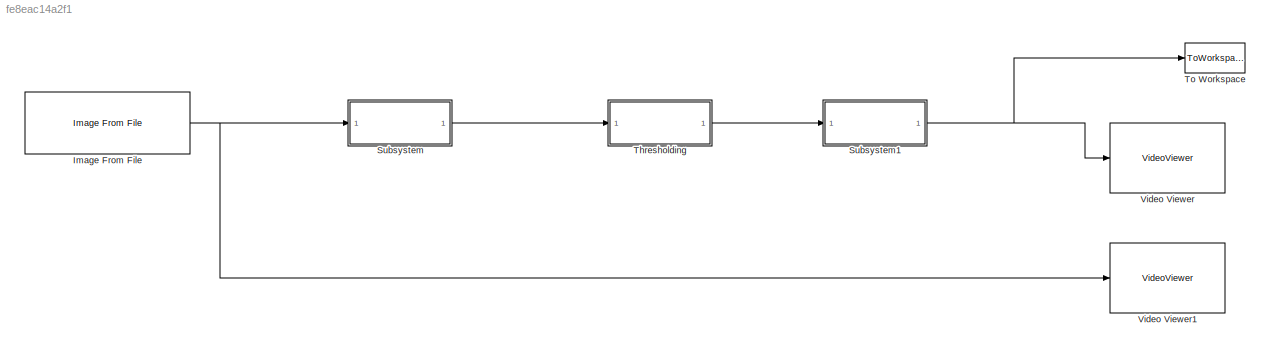
MODEL slx_fe8eac14a2f1
KIND model
CONFIG AbsTol = auto
CONFIG EnableMultiTasking = off
CONFIG FixedStep = auto
CONFIG MaxStep = auto
CONFIG MinStep = auto
CONFIG RelTol = 1e-3
CONFIG SampleTimeConstraint = Unconstrained
CONFIG Solver = VariableStepAuto
CONFIG SolverName = VariableStepAuto
CONFIG StartTime = 0.0
CONFIG StopTime = 10.0
BLOCK [Reference] Image From File  REF=visionsources/Image From File
  Ports = [0, 1]
  SourceBlock = visionsources/Image From File
  SourceProductBaseCode = VP
  SourceProductName = Computer Vision System Toolbox
  SourceType = Image From File
  Tag = vipblks_nd
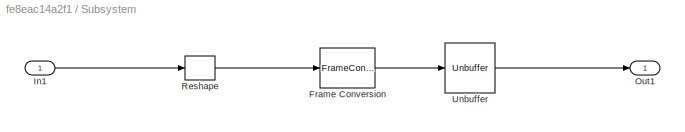
BLOCK [SubSystem] Subsystem
  Ports = [1, 1]
  RequestExecContextInheritance = off
BLOCK [FrameConversion] Subsystem/Frame Conversion
  Ports = [1, 1]
BLOCK [Inport] Subsystem/In1
  IconDisplay = Port number
BLOCK [Outport] Subsystem/Out1
  IconDisplay = Port number
BLOCK [Reshape] Subsystem/Reshape
  Ports = [1, 1]
BLOCK [Unbuffer] Subsystem/Unbuffer
  Ports = [1, 1]
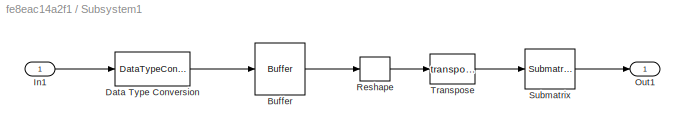
BLOCK [SubSystem] Subsystem1
  Ports = [1, 1]
  RequestExecContextInheritance = off
BLOCK [Buffer] Subsystem1/Buffer
  N = 65536
  OutputFrames = off
BLOCK [DataTypeConversion] Subsystem1/Data Type Conversion
  RndMeth = Floor
  SaturateOnIntegerOverflow = off
BLOCK [Inport] Subsystem1/In1
  IconDisplay = Port number
BLOCK [Outport] Subsystem1/Out1
  IconDisplay = Port number
BLOCK [Reshape] Subsystem1/Reshape
  OutputDimensionality = Customize
  OutputDimensions = [256,256]
  Ports = [1, 1]
BLOCK [Reference] Subsystem1/Submatrix  REF=dspmtrx3/Submatrix
  Ports = [1, 1]
  SourceBlock = dspmtrx3/Submatrix
  SourceProductBaseCode = DS
  SourceProductName = DSP System Toolbox
  SourceType = Submatrix
BLOCK [Math] Subsystem1/Transpose
  Operator = transpose
  Ports = [1, 1]
  RndMeth = Zero
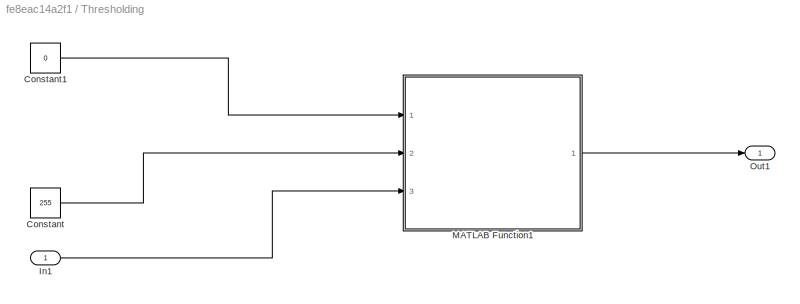
BLOCK [SubSystem] Thresholding
  Ports = [1, 1]
  RequestExecContextInheritance = off
  TreatAsAtomicUnit = on
BLOCK [Constant] Thresholding/Constant
  OutDataTypeStr = uint32
  SampleTime = -1
  Value = 255
BLOCK [Constant] Thresholding/Constant1
  OutDataTypeStr = uint32
  SampleTime = -1
  Value = 0
BLOCK [Inport] Thresholding/In1
  IconDisplay = Port number
  OutDataTypeStr = uint8
  PortDimensions = 1
  SampleTime = 1.52587890625e-06
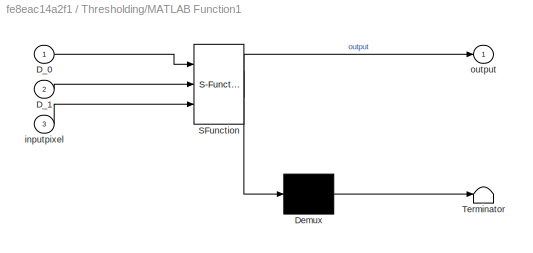
BLOCK [SubSystem] Thresholding/MATLAB Function1
  ErrorFcn = Stateflow.Translate.translate
  PermitHierarchicalResolution = ExplicitOnly
  Ports = [3, 1]
  RequestExecContextInheritance = off
  SFBlockType = MATLAB Function
  TreatAsAtomicUnit = on
BLOCK [Demux] Thresholding/MATLAB Function1/ Demux 
  Outputs = 1
  Ports = [1, 1]
BLOCK [S-Function] Thresholding/MATLAB Function1/ SFunction 
  EnableBusSupport = on
  FunctionName = sf_sfun
  PortCounts = [3 2]
  Ports = [3, 2]
  SFcnIsStateOwnerBlock = off
  SFunctionDeploymentMode = off
  Tag = Stateflow S-Function gm_Image_threshold_final 2
BLOCK [Terminator] Thresholding/MATLAB Function1/ Terminator 
BLOCK [Inport] Thresholding/MATLAB Function1/D_0
  IconDisplay = Port number
BLOCK [Inport] Thresholding/MATLAB Function1/D_1
  IconDisplay = Port number
  Port = 2
BLOCK [Inport] Thresholding/MATLAB Function1/inputpixel
  IconDisplay = Port number
  Port = 3
BLOCK [Outport] Thresholding/MATLAB Function1/output
  IconDisplay = Port number
BLOCK [Outport] Thresholding/Out1
  IconDisplay = Port number
BLOCK [ToWorkspace] To Workspace
  FixptAsFi = on
  MaxDataPoints = inf
  Ports = [1]
  SampleTime = -1
  Save2DSignal = 2-D array (concatenate along first dimension)
  VariableName = simout
BLOCK [VideoViewer] Video Viewer
  FigPos = [1249 575 418 304]
  Ports = [1]
  ScopeSpecificationString = vipscopes.VideoViewerScopeCfg('CurrentConfiguration', extmgr.ConfigurationSet(extmgr.Configuration('Core','General UI',true),extmgr.Configuration('Core','Source UI',true),extmgr.Configuration('Sources','WiredSimulink',true),extmgr.Configuration('Visuals','Video',true),extmgr.Configuration('Tools','Image Navigation Tools',true),extmgr.Configuration('Tools','Image Tool',true),extmgr.Configuration('T...<+76ch>
BLOCK [VideoViewer] Video Viewer1
  FigPos = [487 497 457 372]
  Ports = [1]
  ScopeSpecificationString = vipscopes.VideoViewerScopeCfg('CurrentConfiguration', extmgr.ConfigurationSet(extmgr.Configuration('Core','General UI',true),extmgr.Configuration('Core','Source UI',true),extmgr.Configuration('Sources','WiredSimulink',true),extmgr.Configuration('Visuals','Video',true),extmgr.Configuration('Tools','Image Navigation Tools',true),extmgr.Configuration('Tools','Image Tool',true),extmgr.Configuration('T...<+75ch>
NET Image From File:1 -> Subsystem:1, Video Viewer1:1
LINE Subsystem/Frame Conversion:1 -> Subsystem/Unbuffer:1
LINE Subsystem/In1:1 -> Subsystem/Reshape:1
LINE Subsystem/Reshape:1 -> Subsystem/Frame Conversion:1
LINE Subsystem/Unbuffer:1 -> Subsystem/Out1:1
LINE Subsystem1/Buffer:1 -> Subsystem1/Reshape:1
LINE Subsystem1/Data Type Conversion:1 -> Subsystem1/Buffer:1
LINE Subsystem1/In1:1 -> Subsystem1/Data Type Conversion:1
LINE Subsystem1/Reshape:1 -> Subsystem1/Transpose:1
LINE Subsystem1/Submatrix:1 -> Subsystem1/Out1:1
LINE Subsystem1/Transpose:1 -> Subsystem1/Submatrix:1
NET Subsystem1:1 -> To Workspace:1, Video Viewer:1
LINE Subsystem:1 -> Thresholding:1
LINE Thresholding/Constant1:1 -> Thresholding/MATLAB Function1:1
LINE Thresholding/Constant:1 -> Thresholding/MATLAB Function1:2
LINE Thresholding/In1:1 -> Thresholding/MATLAB Function1:3
LINE Thresholding/MATLAB Function1:1 -> Thresholding/Out1:1
LINE Thresholding:1 -> Subsystem1:1
note: NET lines group one-source signal fan-out (src -> all destinations, sorted); 1:1 wires keep LINE
CHART Thresholding/MATLAB Function1 states=1 transitions=1
  STATE_LABEL 'eML_blk_kernel()'
  STATE_LABEL 'SCRIPT:\nfunction output = my_new_2_isto_1_mux(D_0,D_1,inputpixel)\nif(inputpixel<=120) \noutput=D_0; \nelse \noutput=D_1; \nend \nend'
